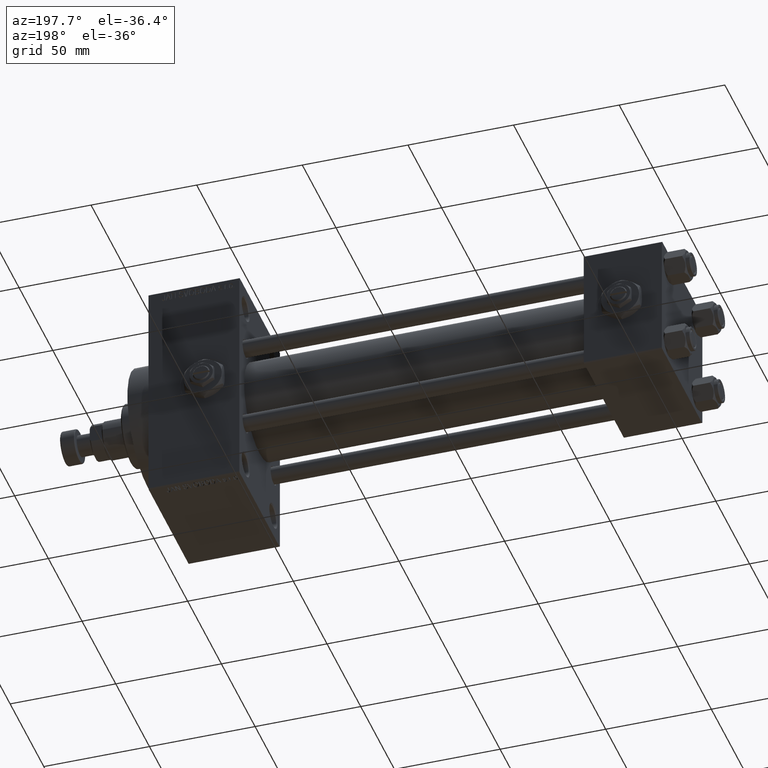
[diagram: clean part render]
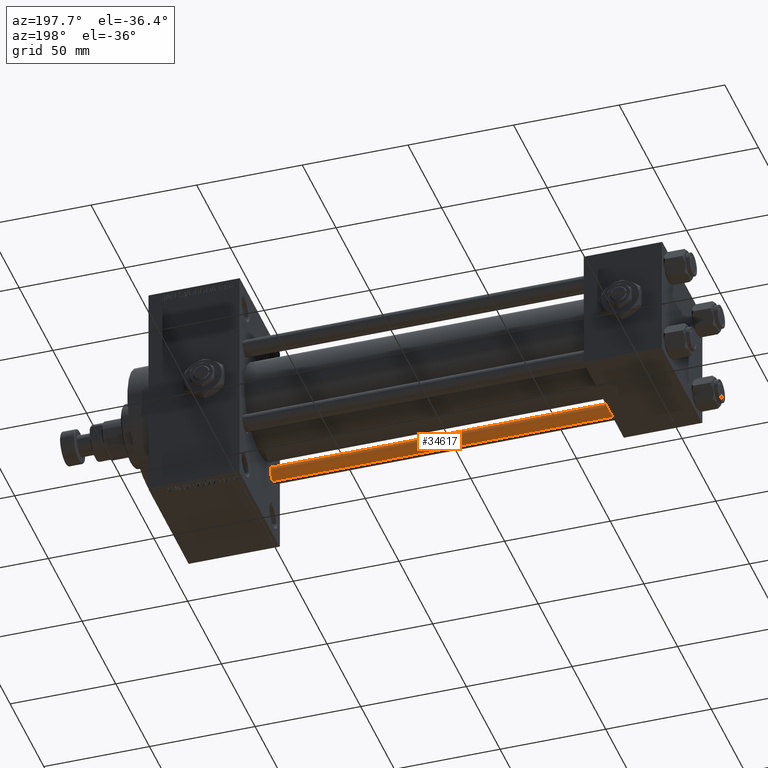
[diagram: same view with one face highlighted and labeled with its STEP entity id]
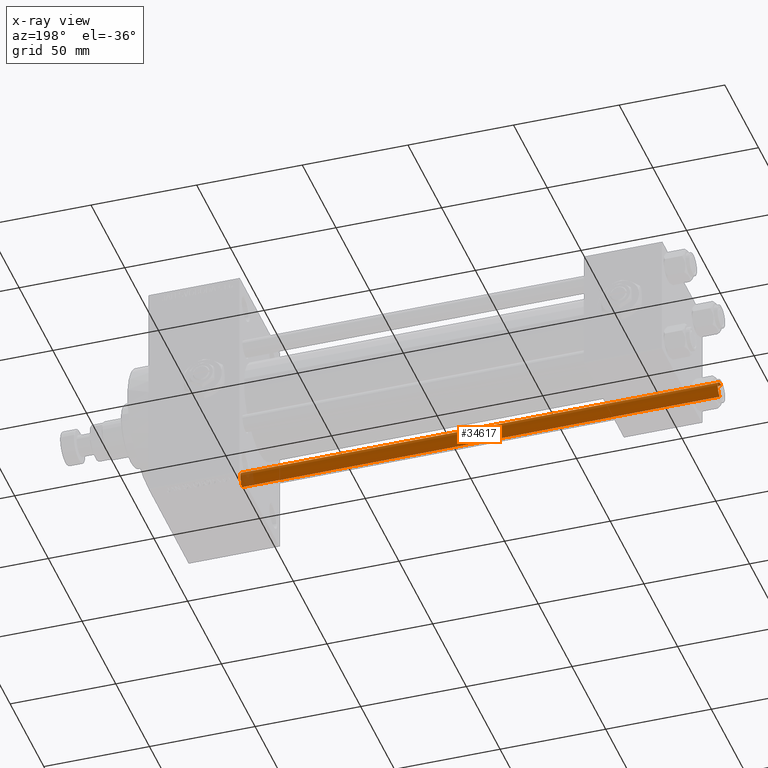
[diagram: x-ray of the same camera — body ghosted, the highlighted face saturated]
A machine part, auxiliary view. The second image highlights one B-rep face of the part: STEP entity #34617.
The next image is the same camera in x-ray: the body ghosted, the highlighted face saturated — about 3% of this face is hidden behind the body in this view.
In plain terms, the highlighted cylindrical surface (edge-blend (fillet) strip) has radius 4 mm, axis along (-1, 0, 0).
Its self-contained STEP definition (entity closure, byte-faithful):
#1223 = ORIENTED_EDGE ( 'NONE', *, *, #31085, .T. ) ;
#2674 = DIRECTION ( 'NONE',  ( 1.000000000000000000, 0.000000000000000000, 0.000000000000000000 ) ) ;
#2694 = FACE_OUTER_BOUND ( 'NONE', #43798, .T. ) ;
#2914 = ORIENTED_EDGE ( 'NONE', *, *, #37244, .T. ) ;
#3298 = ORIENTED_EDGE ( 'NONE', *, *, #35528, .F. ) ;
#3360 = VERTEX_POINT ( 'NONE', #9779 ) ;
#3553 = CIRCLE ( 'NONE', #19576, 4.000000000000000000 ) ;
#4205 = VERTEX_POINT ( 'NONE', #26346 ) ;
#4263 = VECTOR ( 'NONE', #23726, 1000.000000000000000 ) ;
#6717 = CYLINDRICAL_SURFACE ( 'NONE', #38071, 4.000000000000000000 ) ;
#7582 = CARTESIAN_POINT ( 'NONE',  ( -4.000000000000000000, 0.000000000000000000, 0.5000000000002224887 ) ) ;
#8399 = LINE ( 'NONE', #47103, #4263 ) ;
#9196 = AXIS2_PLACEMENT_3D ( 'NONE', #36120, #17008, #48197 ) ;
#9779 = CARTESIAN_POINT ( 'NONE',  ( 4.000000000000000000, 4.898587196589411843E-16, 0.5000000000002224887 ) ) ;
#12320 = LINE ( 'NONE', #23371, #25249 ) ;
#14463 = DIRECTION ( 'NONE',  ( 0.000000000000000000, 0.000000000000000000, -1.000000000000000000 ) ) ;
#17008 = DIRECTION ( 'NONE',  ( -0.000000000000000000, -0.000000000000000000, 1.000000000000000000 ) ) ;
#17738 = VERTEX_POINT ( 'NONE', #7582 ) ;
#19576 = AXIS2_PLACEMENT_3D ( 'NONE', #25291, #14463, #2674 ) ;
#23371 = CARTESIAN_POINT ( 'NONE',  ( 4.000000000000000000, 4.898587196589411843E-16, 227.0000000000000000 ) ) ;
#23726 = DIRECTION ( 'NONE',  ( -0.000000000000000000, -0.000000000000000000, -1.000000000000000000 ) ) ;
#25249 = VECTOR ( 'NONE', #38733, 1000.000000000000000 ) ;
#25291 = CARTESIAN_POINT ( 'NONE',  ( 0.000000000000000000, 0.000000000000000000, 226.5000000000001421 ) ) ;
#26346 = CARTESIAN_POINT ( 'NONE',  ( 4.000000000000000000, 4.898587196589411843E-16, 226.5000000000001421 ) ) ;
#31085 = EDGE_CURVE ( 'NONE', #35358, #17738, #8399, .T. ) ;
#33107 = DIRECTION ( 'NONE',  ( -1.000000000000000000, 0.000000000000000000, 0.000000000000000000 ) ) ;
#34453 = CARTESIAN_POINT ( 'NONE',  ( -4.000000000000000000, 0.000000000000000000, 226.5000000000001421 ) ) ;
#34617 = ADVANCED_FACE ( 'NONE', ( #2694 ), #6717, .T. ) ;
#35358 = VERTEX_POINT ( 'NONE', #34453 ) ;
#35528 = EDGE_CURVE ( 'NONE', #4205, #3360, #12320, .T. ) ;
#35677 = ORIENTED_EDGE ( 'NONE', *, *, #35903, .T. ) ;
#35903 = EDGE_CURVE ( 'NONE', #17738, #3360, #46156, .T. ) ;
#36120 = CARTESIAN_POINT ( 'NONE',  ( 0.000000000000000000, 0.000000000000000000, 0.5000000000002224887 ) ) ;
#37244 = EDGE_CURVE ( 'NONE', #4205, #35358, #3553, .T. ) ;
#38071 = AXIS2_PLACEMENT_3D ( 'NONE', #44685, #40904, #33107 ) ;
#38733 = DIRECTION ( 'NONE',  ( -0.000000000000000000, -0.000000000000000000, -1.000000000000000000 ) ) ;
#40904 = DIRECTION ( 'NONE',  ( -0.000000000000000000, -0.000000000000000000, -1.000000000000000000 ) ) ;
#43798 = EDGE_LOOP ( 'NONE', ( #3298, #2914, #1223, #35677 ) ) ;
#44685 = CARTESIAN_POINT ( 'NONE',  ( 0.000000000000000000, 0.000000000000000000, 227.0000000000000000 ) ) ;
#46156 = CIRCLE ( 'NONE', #9196, 4.000000000000000000 ) ;
#47103 = CARTESIAN_POINT ( 'NONE',  ( -4.000000000000000000, 0.000000000000000000, 227.0000000000000000 ) ) ;
#48197 = DIRECTION ( 'NONE',  ( 1.000000000000000000, 0.000000000000000000, 0.000000000000000000 ) ) ;